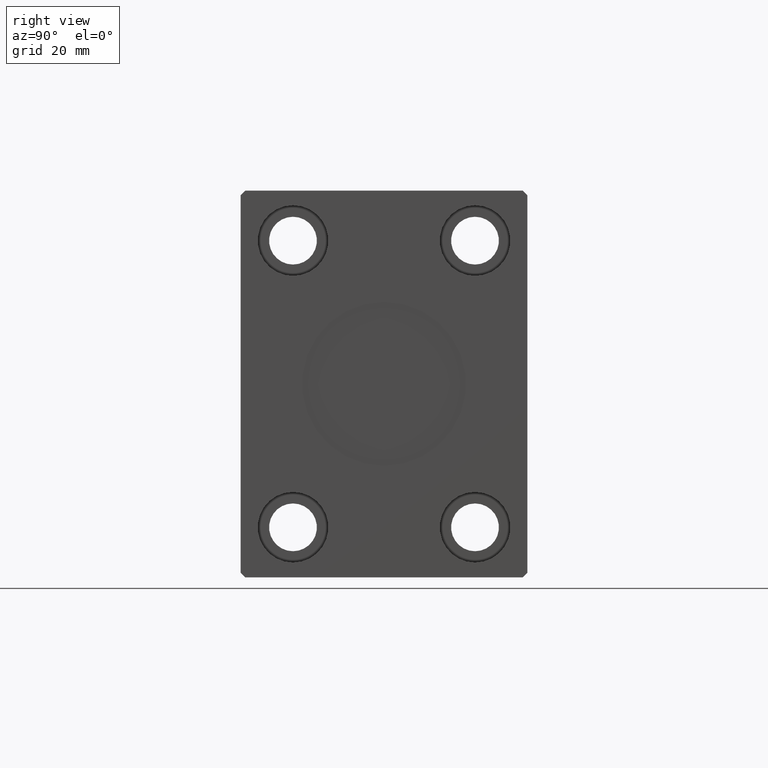
[diagram: clean part render]
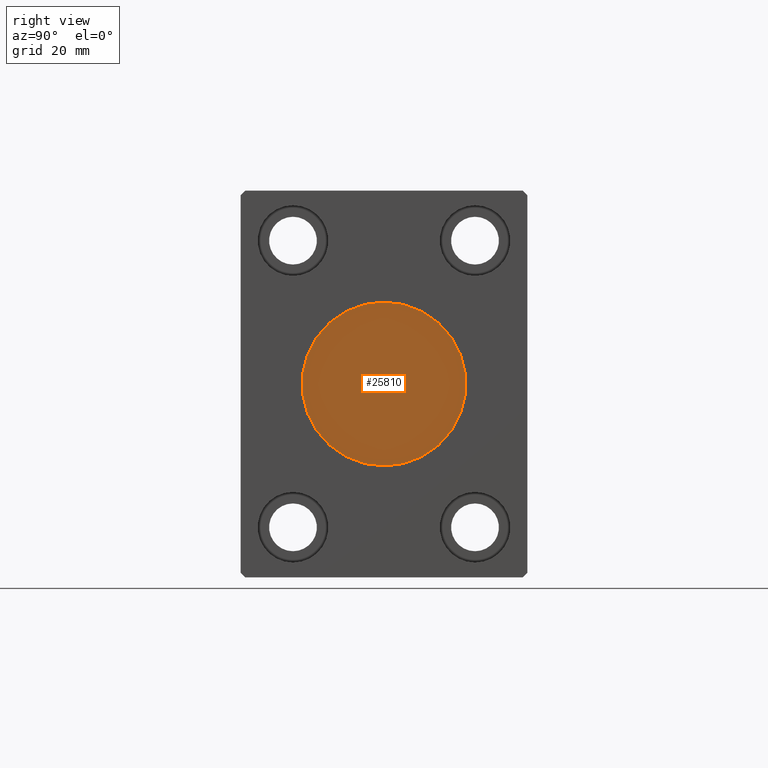
[diagram: same view with one face highlighted and labeled with its STEP entity id]
A machine part, right view. The second image highlights one B-rep face of the part: STEP entity #25810.
In plain terms, the highlighted planar face has unit normal (1, 0, 0).
Its self-contained STEP definition (entity closure, byte-faithful):
#320 = DIRECTION ( 'NONE',  ( 1.000000000000000000, 0.000000000000000000, 0.000000000000000000 ) ) ;
#2106 = CARTESIAN_POINT ( 'NONE',  ( 120.7999999999999972, 0.000000000000000000, -18.00000000000000000 ) ) ;
#3130 = PLANE ( 'NONE',  #33281 ) ;
#3746 = CIRCLE ( 'NONE', #41390, 18.00000000000000000 ) ;
#4519 = ORIENTED_EDGE ( 'NONE', *, *, #28277, .T. ) ;
#6116 = VERTEX_POINT ( 'NONE', #2106 ) ;
#7825 = DIRECTION ( 'NONE',  ( 1.000000000000000000, 0.000000000000000000, 0.000000000000000000 ) ) ;
#7973 = AXIS2_PLACEMENT_3D ( 'NONE', #12934, #16152, #32481 ) ;
#8486 = VERTEX_POINT ( 'NONE', #39015 ) ;
#9117 = ORIENTED_EDGE ( 'NONE', *, *, #18967, .T. ) ;
#10699 = CIRCLE ( 'NONE', #7973, 18.00000000000000000 ) ;
#12934 = CARTESIAN_POINT ( 'NONE',  ( 120.7999999999999972, 0.000000000000000000, 0.000000000000000000 ) ) ;
#14262 = CARTESIAN_POINT ( 'NONE',  ( 120.7999999999999972, 0.000000000000000000, 0.000000000000000000 ) ) ;
#16152 = DIRECTION ( 'NONE',  ( 1.000000000000000000, 0.000000000000000000, 0.000000000000000000 ) ) ;
#16212 = DIRECTION ( 'NONE',  ( 0.000000000000000000, 0.000000000000000000, -1.000000000000000000 ) ) ;
#18967 = EDGE_CURVE ( 'NONE', #6116, #8486, #3746, .T. ) ;
#25810 = ADVANCED_FACE ( 'NONE', ( #32539 ), #3130, .T. ) ;
#28277 = EDGE_CURVE ( 'NONE', #8486, #6116, #10699, .T. ) ;
#32481 = DIRECTION ( 'NONE',  ( 0.000000000000000000, 0.000000000000000000, -1.000000000000000000 ) ) ;
#32539 = FACE_OUTER_BOUND ( 'NONE', #41440, .T. ) ;
#33281 = AXIS2_PLACEMENT_3D ( 'NONE', #36188, #320, #16212 ) ;
#36188 = CARTESIAN_POINT ( 'NONE',  ( 120.7999999999999972, 0.000000000000000000, 0.000000000000000000 ) ) ;
#38105 = DIRECTION ( 'NONE',  ( 0.000000000000000000, 0.000000000000000000, -1.000000000000000000 ) ) ;
#39015 = CARTESIAN_POINT ( 'NONE',  ( 120.7999999999999972, 2.204364238465235428E-15, 18.00000000000000000 ) ) ;
#41390 = AXIS2_PLACEMENT_3D ( 'NONE', #14262, #7825, #38105 ) ;
#41440 = EDGE_LOOP ( 'NONE', ( #9117, #4519 ) ) ;